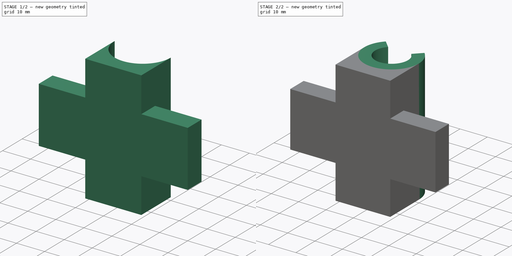
[diagram: build sequence overview — one tinted view per stage of 2, left to right]
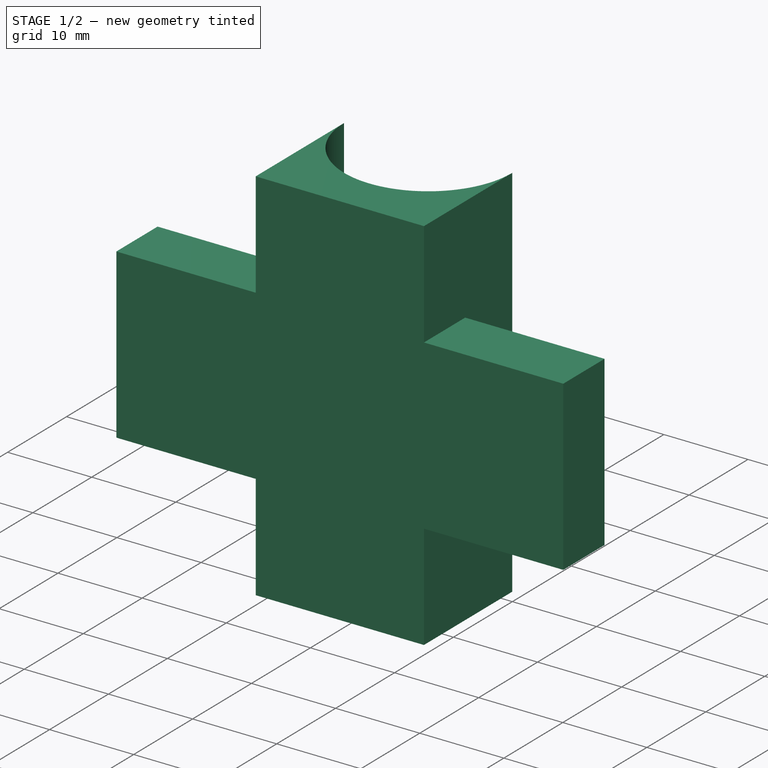
[diagram: stage 1 of 2 — iso view after this stage's code; geometry added in this stage tinted green]
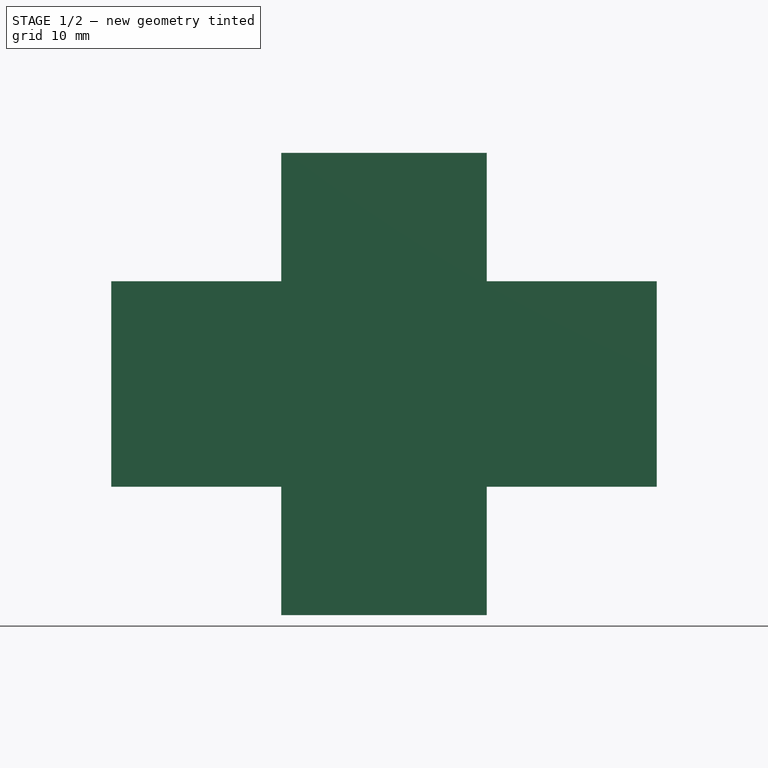
[diagram: stage 1 of 2 — front view after this stage's code; geometry added in this stage tinted green]
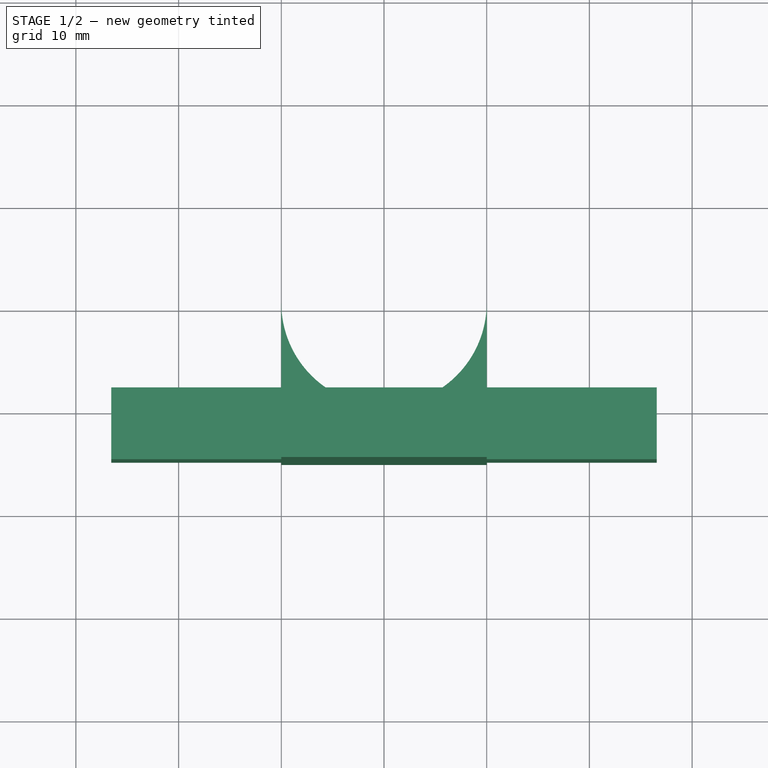
[diagram: stage 1 of 2 — top view after this stage's code; geometry added in this stage tinted green]
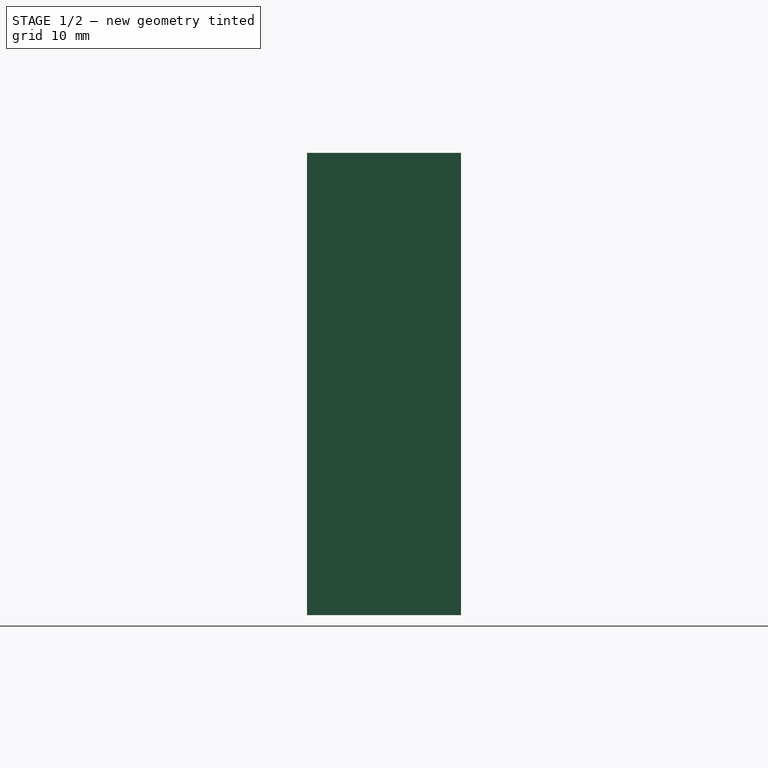
[diagram: stage 1 of 2 — right view after this stage's code; geometry added in this stage tinted green]
FCSTD DOCUMENT  (FreeCAD 0.16R6704 (Git))
Label: z-carriage
License: All rights reserved
LicenseURL: http://de.wikipedia.org/wiki/Alle_Rechte_vorbehalten
objects: Sketcher::SketchObject×3, PartDesign::Pad×3
note: 9 computed .brp shape members not serialized (recipe doc carries the construction recipe); baked Part::Feature solids carry a one-line shape summary decoded from their .brp

FEATURE [Sketcher::SketchObject] Sketch003
  sketch-geometry (4):
    g0: ArcOfCircle CenterX=0 CenterY=0 CenterZ=0 NormalX=0 NormalY=0 NormalZ=1 Radius=10 StartAngle=3.14159 EndAngle=6.28319
    g1: LineSegment StartX=10 StartY=0 StartZ=0 EndX=10 EndY=-15 EndZ=0
    g2: LineSegment StartX=-10 StartY=0 StartZ=0 EndX=-10 EndY=-15 EndZ=0
    g3: LineSegment StartX=-10 StartY=-15 StartZ=0 EndX=10 EndY=-15 EndZ=0
  constraints (12):
    c: Coincident(g0,g-1)
    c: Symmetric(g0,g0,g-2)
    c: Coincident(g1,g0)
    c: Vertical(g1)
    c: Coincident(g2,g0)
    c: Horizontal(g3)
    c: Symmetric(g2,g1,g-2)
    c: PointOnObject(g0,g-1)
    c: Radius(g0) = 10
    c: Coincident(g1,g3)
    c: Coincident(g3,g2)
    c: DistanceY(g1,g1) = 15
FEATURE [PartDesign::Pad] Pad001
  Length = 45
  Length2 = 100
  Midplane = true
  Sketch = -> Sketch003
  Type = 0
FEATURE [Sketcher::SketchObject] Sketch004
  sketch-geometry (4):
    g0: LineSegment StartX=-26.5623 StartY=-8 StartZ=0 EndX=26.5623 EndY=-8 EndZ=0
    g1: LineSegment StartX=26.5623 StartY=-8 StartZ=0 EndX=26.5623 EndY=-15 EndZ=0
    g2: LineSegment StartX=26.5623 StartY=-15 StartZ=0 EndX=-26.5623 EndY=-15 EndZ=0
    g3: LineSegment StartX=-26.5623 StartY=-15 StartZ=0 EndX=-26.5623 EndY=-8 EndZ=0
  constraints (11):
    c: Coincident(g0,g1)
    c: Coincident(g1,g2)
    c: Coincident(g2,g3)
    c: Coincident(g3,g0)
    c: Horizontal(g0)
    c: Horizontal(g2)
    c: Vertical(g1)
    c: Vertical(g3)
    c: DistanceY(g3,g3) = 7
    c: DistanceY(g1,g-1) = 15
    c: Symmetric(g2,g1,g-2)
FEATURE [PartDesign::Pad] Pad002
  Length = 20
  Length2 = 100
  Midplane = true
  Sketch = -> Sketch004
  Type = 0
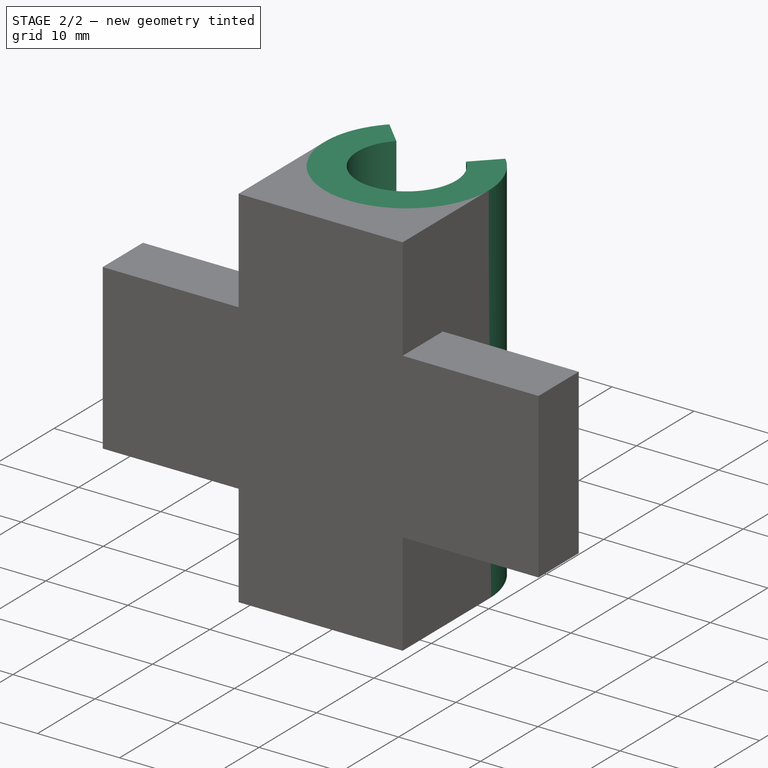
[diagram: stage 2 of 2 — iso view after this stage's code; geometry added in this stage tinted green]
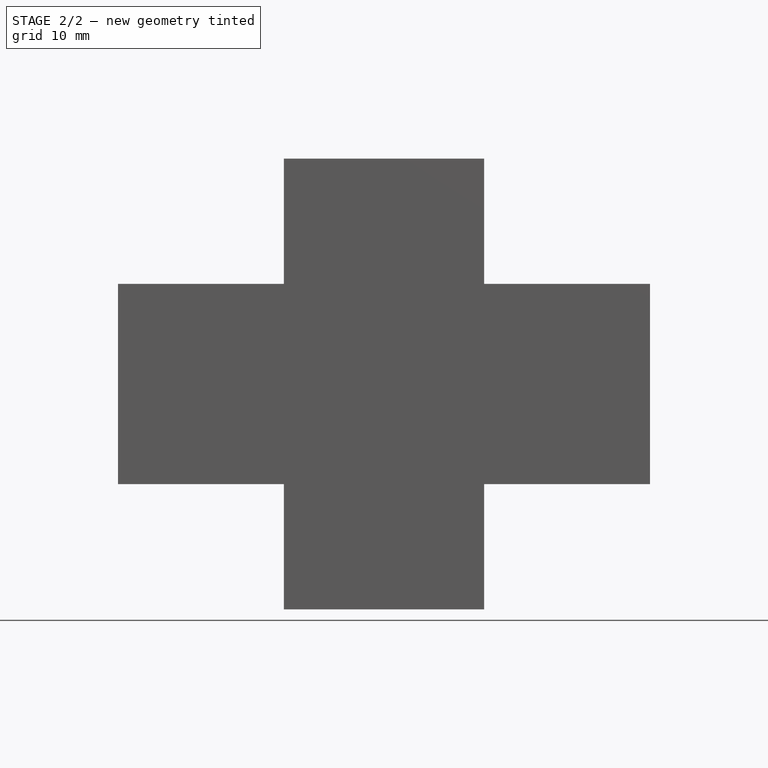
[diagram: stage 2 of 2 — front view after this stage's code; geometry added in this stage tinted green]
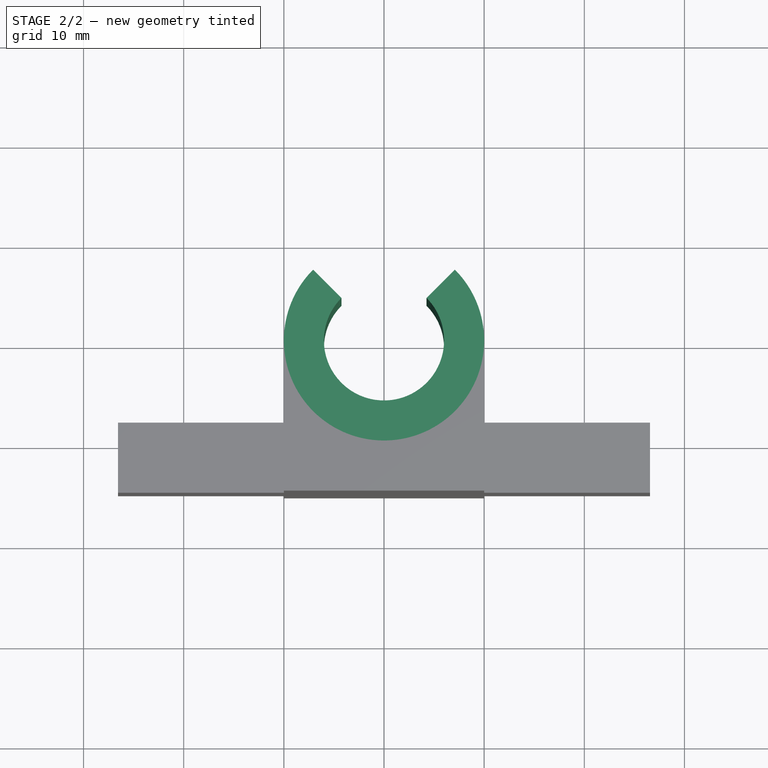
[diagram: stage 2 of 2 — top view after this stage's code; geometry added in this stage tinted green]
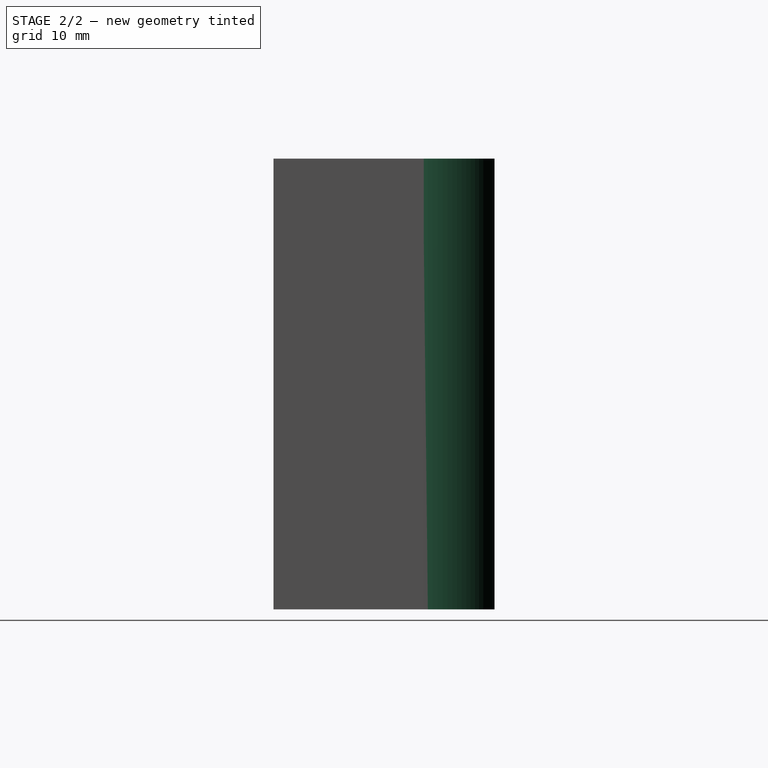
[diagram: stage 2 of 2 — right view after this stage's code; geometry added in this stage tinted green]
FEATURE [Sketcher::SketchObject] Sketch
  sketch-geometry (4):
    g0: ArcOfCircle CenterX=0 CenterY=0 CenterZ=0 NormalX=0 NormalY=0 NormalZ=1 Radius=10 StartAngle=2.35619 EndAngle=7.06858
    g1: ArcOfCircle CenterX=0 CenterY=0 CenterZ=0 NormalX=0 NormalY=0 NormalZ=1 Radius=6 StartAngle=2.35619 EndAngle=7.06858
    g2: LineSegment StartX=-4.24264 StartY=4.24264 StartZ=0 EndX=-7.07107 EndY=7.07107 EndZ=0
    g3: LineSegment StartX=7.07107 StartY=7.07107 StartZ=0 EndX=4.24264 EndY=4.24264 EndZ=0
  constraints (12):
    c: Coincident(g0,g-1)
    c: Coincident(g1,g-1)
    c: Coincident(g2,g1)
    c: Coincident(g2,g0)
    c: Coincident(g3,g0)
    c: Coincident(g3,g1)
    c: Perpendicular(g1,g2)
    c: Perpendicular(g1,g3)
    c: Symmetric(g1,g1,g-2)
    c: Angle(g1) = 4.71239
    c: Radius(g1) = 6
    c: Radius(g0) = 10
FEATURE [PartDesign::Pad] Pad
  Length = 45
  Length2 = 100
  Midplane = true
  Sketch = -> Sketch
  Type = 0
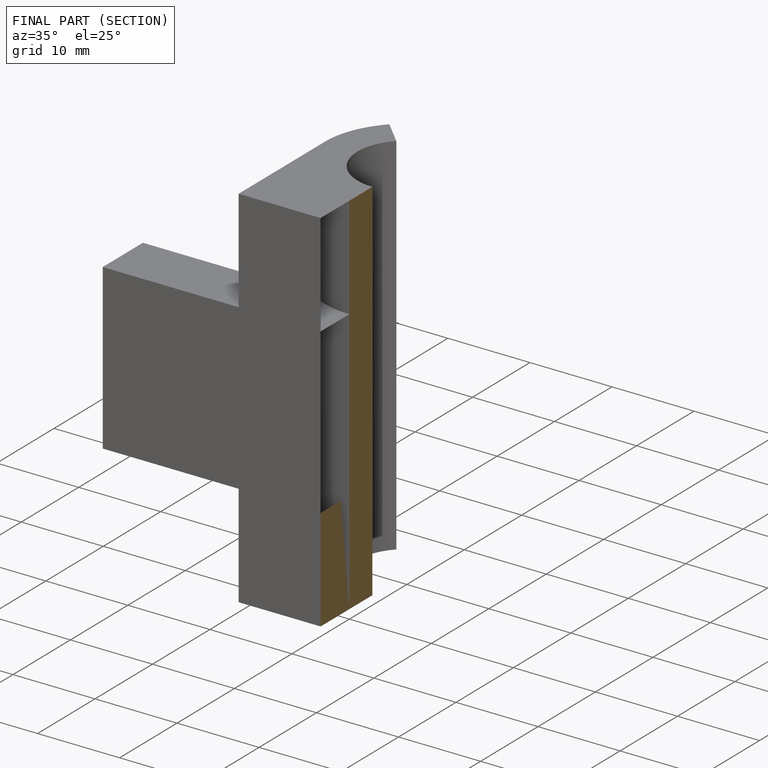
[diagram: finished part — half-section view (interior)]
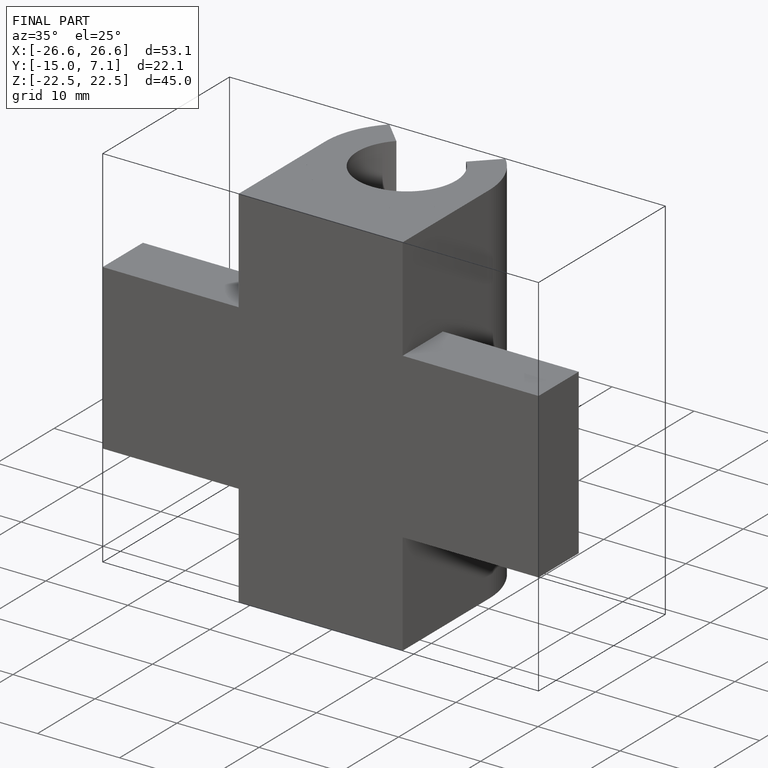
[diagram: finished part — iso view with bounding-box wireframe]
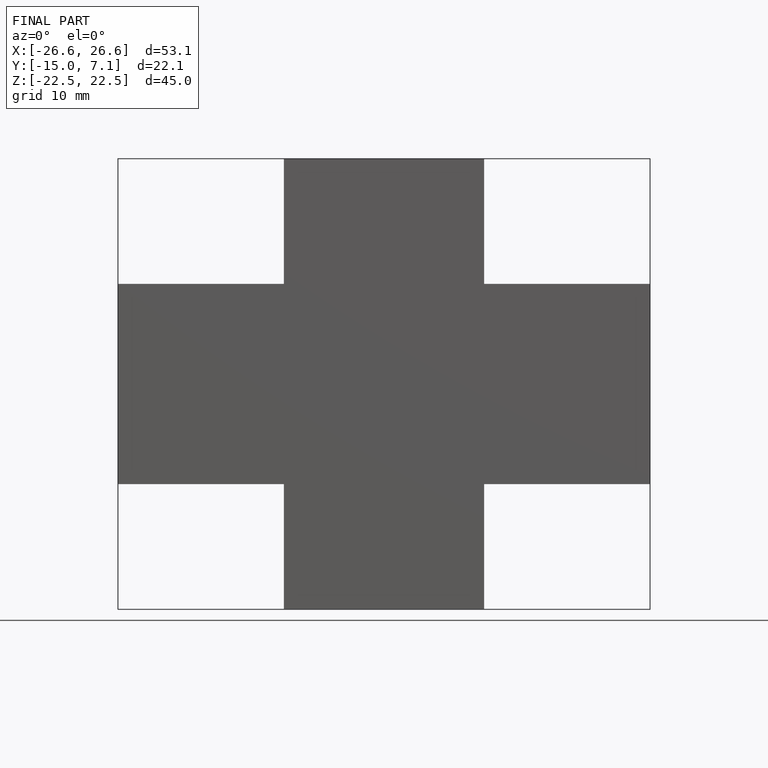
[diagram: finished part — front view with bounding-box wireframe]
